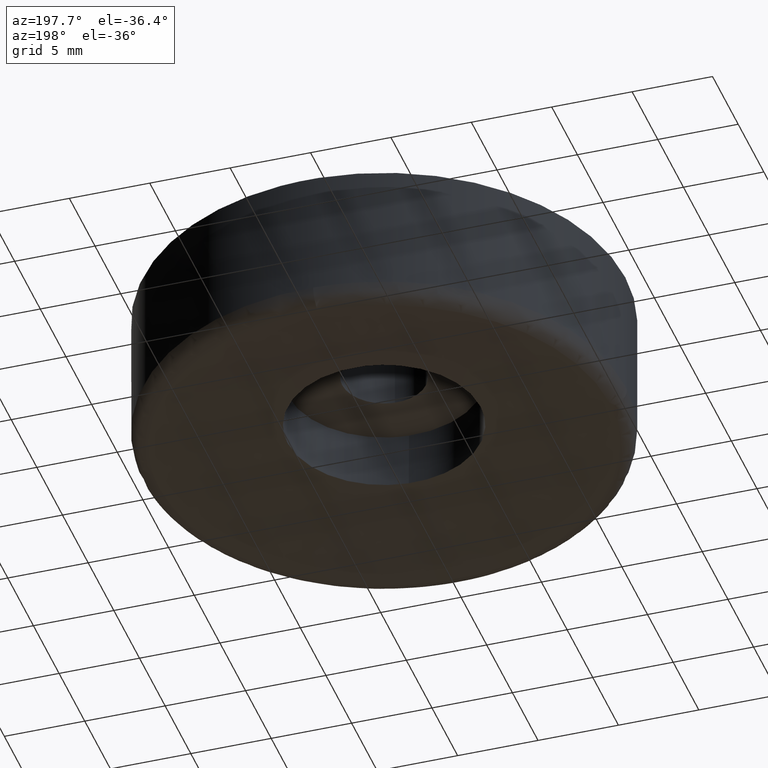
[diagram: clean part render]
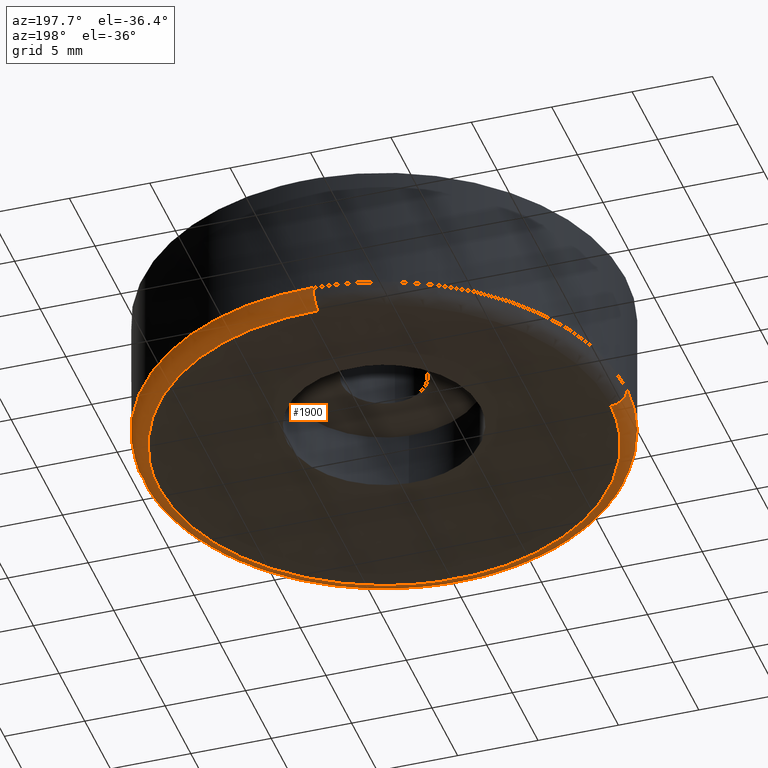
[diagram: same view with one face highlighted and labeled with its STEP entity id]
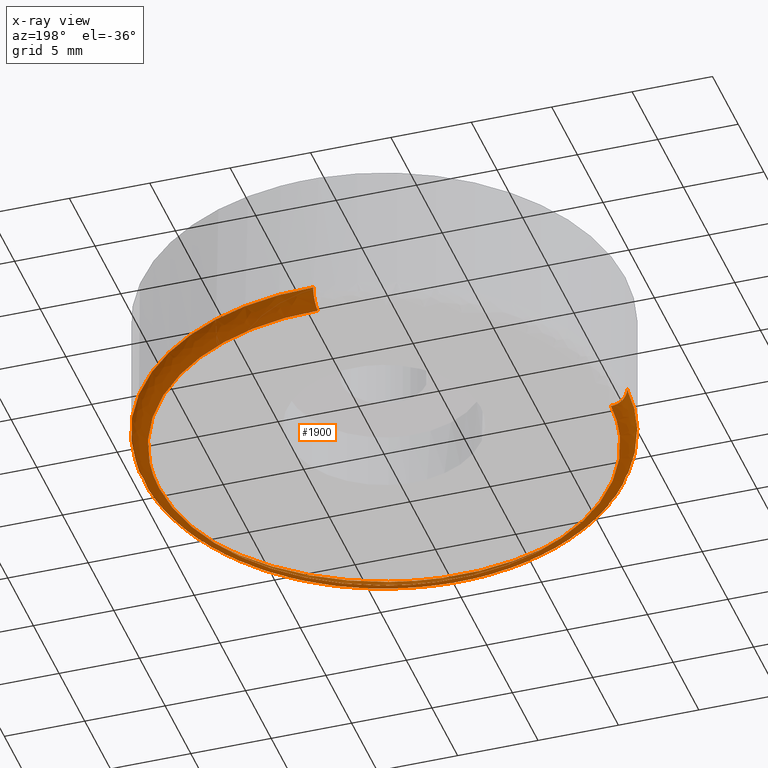
[diagram: x-ray of the same camera — body ghosted, the highlighted face saturated]
A machine part, auxiliary view. The second image highlights one B-rep face of the part: STEP entity #1900.
The next image is the same camera in x-ray: the body ghosted, the highlighted face saturated — about 0% of this face is hidden behind the body in this view.
In plain terms, the highlighted face is a freeform B-spline surface patch.
Its self-contained STEP definition (entity closure, byte-faithful):
#519=CARTESIAN_POINT('',(-7.216511091337302,-11.996745991237420,0.000000356857896));
#520=VERTEX_POINT('',#519);
#521=CARTESIAN_POINT('',(-13.995578650399141,-0.351821336239177,1.874299E-016));
#522=VERTEX_POINT('',#521);
#523=CARTESIAN_POINT('',(-7.216511091337302,-11.996745991237422,0.000000356857896));
#524=CARTESIAN_POINT('',(-13.802436730045450,-8.035055702131242,0.000000178428948));
#525=CARTESIAN_POINT('',(-13.995578650399141,-0.351821336239177,1.874299E-016));
#533=(BOUNDED_CURVE()B_SPLINE_CURVE(2,(#523,#524,#525),.UNSPECIFIED.,.F.,.U.)B_SPLINE_CURVE_WITH_KNOTS((3,3),(0.838022801736637,0.995579891769269),.UNSPECIFIED.)CURVE()GEOMETRIC_REPRESENTATION_ITEM()RATIONAL_B_SPLINE_CURVE((0.866368646969517,0.811763793235545,0.989826157680359))REPRESENTATION_ITEM(''));
#534=EDGE_CURVE('',#520,#522,#533,.T.);
#551=CARTESIAN_POINT('',(-0.351821336244475,13.995578650466770,1.874299E-016));
#552=VERTEX_POINT('',#551);
#566=CARTESIAN_POINT('',(14.0,0.0,0.0));
#567=VERTEX_POINT('',#566);
#568=CARTESIAN_POINT('',(-0.351821336244475,13.995578650466772,1.874299E-016));
#569=CARTESIAN_POINT('',(-0.175938449752476,13.999999999999998,0.0));
#570=CARTESIAN_POINT('',(0.0,14.0,0.0));
#571=CARTESIAN_POINT('',(13.999999999999998,13.999999999999998,0.0));
#572=CARTESIAN_POINT('',(14.0,0.0,0.0));
#580=(BOUNDED_CURVE()B_SPLINE_CURVE(2,(#568,#569,#570,#571,#572),.UNSPECIFIED.,.F.,.U.)B_SPLINE_CURVE_WITH_KNOTS((3,2,3),(0.245579891769179,0.250000000000000,0.500000000000000),.UNSPECIFIED.)CURVE()GEOMETRIC_REPRESENTATION_ITEM()RATIONAL_B_SPLINE_CURVE((0.989826157680155,0.994821521091084,1.0,0.707106781186547,1.0))REPRESENTATION_ITEM(''));
#581=EDGE_CURVE('',#552,#567,#580,.T.);
#583=CARTESIAN_POINT('',(1.098427340218535,-13.956842672265889,-8.158092E-013));
#584=VERTEX_POINT('',#583);
#585=CARTESIAN_POINT('',(14.0,0.0,0.0));
#586=CARTESIAN_POINT('',(14.000000000000004,-12.941466883162205,0.0));
#587=CARTESIAN_POINT('',(1.098427340218535,-13.956842672265889,-8.158092E-013));
#595=(BOUNDED_CURVE()B_SPLINE_CURVE(2,(#585,#586,#587),.UNSPECIFIED.,.F.,.U.)B_SPLINE_CURVE_WITH_KNOTS((3,3),(0.500000000000000,0.736331300632071),.UNSPECIFIED.)CURVE()GEOMETRIC_REPRESENTATION_ITEM()RATIONAL_B_SPLINE_CURVE((1.0,0.723120658606012,0.969723356170363))REPRESENTATION_ITEM(''));
#596=EDGE_CURVE('',#567,#584,#595,.T.);
#689=CARTESIAN_POINT('',(1.098427340218535,-13.956842672265898,-8.158092E-013));
#690=CARTESIAN_POINT('',(0.550061558266888,-13.999999900000478,0.000000021881228));
#691=CARTESIAN_POINT('',(0.000000121616795,-13.999999797788870,0.000000044245854));
#692=CARTESIAN_POINT('',(-3.886299779734846,-13.999999075642338,0.000000202256651));
#693=CARTESIAN_POINT('',(-7.216511091337302,-11.996745991237422,0.000000356857896));
#701=(BOUNDED_CURVE()B_SPLINE_CURVE(2,(#689,#690,#691,#692,#693),.UNSPECIFIED.,.F.,.U.)B_SPLINE_CURVE_WITH_KNOTS((3,2,3),(0.736331300632070,0.750000000000000,0.838022801736637),.UNSPECIFIED.)CURVE()GEOMETRIC_REPRESENTATION_ITEM()RATIONAL_B_SPLINE_CURVE((0.969723356170361,0.983986122580534,1.0,0.896874873081512,0.866368646969517))REPRESENTATION_ITEM(''));
#702=EDGE_CURVE('',#584,#520,#701,.T.);
#1447=CARTESIAN_POINT('',(14.639534999406409,-3.268641155137535,0.999999999999965));
#1448=VERTEX_POINT('',#1447);
#1449=CARTESIAN_POINT('',(1.176877728282317,-14.953760691297580,1.000000000000031));
#1450=VERTEX_POINT('',#1449);
#1451=CARTESIAN_POINT('',(14.639534999406411,-3.268641155137535,0.999999999999965));
#1452=CARTESIAN_POINT('',(12.224672459072801,-14.084286862360996,1.0));
#1453=CARTESIAN_POINT('',(1.176877728282316,-14.953760691297584,1.000000000000031));
#1461=(BOUNDED_CURVE()B_SPLINE_CURVE(2,(#1451,#1452,#1453),.UNSPECIFIED.,.F.,.U.)B_SPLINE_CURVE_WITH_KNOTS((3,3),(0.537286560370751,0.736331400453952),.UNSPECIFIED.)CURVE()GEOMETRIC_REPRESENTATION_ITEM()RATIONAL_B_SPLINE_CURVE((0.925662740296602,0.762027680026814,0.969723564491107))REPRESENTATION_ITEM(''));
#1462=EDGE_CURVE('',#1448,#1450,#1461,.T.);
#1520=CARTESIAN_POINT('',(15.0,0.0,1.0));
#1521=VERTEX_POINT('',#1520);
#1522=CARTESIAN_POINT('',(15.0,0.0,1.0));
#1523=CARTESIAN_POINT('',(14.999999999999996,-1.654196576567423,1.0));
#1524=CARTESIAN_POINT('',(14.639534999406409,-3.268641155137535,0.999999999999965));
#1532=(BOUNDED_CURVE()B_SPLINE_CURVE(2,(#1522,#1523,#1524),.UNSPECIFIED.,.F.,.U.)B_SPLINE_CURVE_WITH_KNOTS((3,3),(0.500000000000000,0.537286560370751),.UNSPECIFIED.)CURVE()GEOMETRIC_REPRESENTATION_ITEM()RATIONAL_B_SPLINE_CURVE((1.0,0.956316077258115,0.925662740296602))REPRESENTATION_ITEM(''));
#1533=EDGE_CURVE('',#1521,#1448,#1532,.T.);
#1535=CARTESIAN_POINT('',(-0.376951431650352,14.995262839249490,0.999999999845046));
#1536=VERTEX_POINT('',#1535);
#1537=CARTESIAN_POINT('',(-0.376951431650352,14.995262839249484,0.999999999845046));
#1538=CARTESIAN_POINT('',(-0.188505481850985,15.000000000000004,1.0));
#1539=CARTESIAN_POINT('',(0.0,15.0,1.0));
#1540=CARTESIAN_POINT('',(14.999999999999996,14.999999999999996,1.0));
#1541=CARTESIAN_POINT('',(15.0,0.0,1.0));
#1549=(BOUNDED_CURVE()B_SPLINE_CURVE(2,(#1537,#1538,#1539,#1540,#1541),.UNSPECIFIED.,.F.,.U.)B_SPLINE_CURVE_WITH_KNOTS((3,2,3),(0.245579891769801,0.250000000000000,0.500000000000000),.UNSPECIFIED.)CURVE()GEOMETRIC_REPRESENTATION_ITEM()RATIONAL_B_SPLINE_CURVE((0.989826157681561,0.994821521091812,1.0,0.707106781186547,1.0))REPRESENTATION_ITEM(''));
#1550=EDGE_CURVE('',#1536,#1521,#1549,.T.);
#1567=CARTESIAN_POINT('',(-14.995262839249479,-0.376951431650642,0.999999999844865));
#1568=VERTEX_POINT('',#1567);
#1582=CARTESIAN_POINT('',(1.176877728282316,-14.953760691297584,1.000000000000031));
#1583=CARTESIAN_POINT('',(0.589347231092921,-14.999999999999996,1.0));
#1584=CARTESIAN_POINT('',(0.0,-15.0,1.0));
#1585=CARTESIAN_POINT('',(-14.627668142708698,-14.999999999999995,1.0));
#1586=CARTESIAN_POINT('',(-14.995262839249484,-0.376951431650642,0.999999999844865));
#1594=(BOUNDED_CURVE()B_SPLINE_CURVE(2,(#1582,#1583,#1584,#1585,#1586),.UNSPECIFIED.,.F.,.U.)B_SPLINE_CURVE_WITH_KNOTS((3,2,3),(0.736331400453952,0.750000000000000,0.995579891769795),.UNSPECIFIED.)CURVE()GEOMETRIC_REPRESENTATION_ITEM()RATIONAL_B_SPLINE_CURVE((0.969723564491107,0.983986239529144,1.0,0.712285260094742,0.989826157681548))REPRESENTATION_ITEM(''));
#1595=EDGE_CURVE('',#1450,#1568,#1594,.T.);
#1835=CARTESIAN_POINT('',(-0.376890272703577,14.992829914473205,1.069724198540259));
#1836=CARTESIAN_POINT('',(14.615939641769629,15.369720187176783,1.069724198540260));
#1837=CARTESIAN_POINT('',(14.992829914473205,0.376890272703577,1.069724198540259));
#1838=CARTESIAN_POINT('',(15.369720187176785,-14.615939641769625,1.069724198540260));
#1839=CARTESIAN_POINT('',(0.376890272703582,-14.992829914473205,1.069724198540259));
#1840=CARTESIAN_POINT('',(-14.615939641769621,-15.369720187176785,1.069724198540260));
#1841=CARTESIAN_POINT('',(-14.992829914473205,-0.376890272703583,1.069724198540259));
#1842=CARTESIAN_POINT('',(-0.378905027116878,15.072977565993575,-0.077336022312903));
#1843=CARTESIAN_POINT('',(14.694072538876695,15.451882593110451,-0.077336022312903));
#1844=CARTESIAN_POINT('',(15.072977565993575,0.378905027116879,-0.077336022312903));
#1845=CARTESIAN_POINT('',(15.451882593110454,-14.694072538876688,-0.077336022312903));
#1846=CARTESIAN_POINT('',(0.378905027116883,-15.072977565993575,-0.077336022312903));
#1847=CARTESIAN_POINT('',(-14.694072538876688,-15.451882593110454,-0.077336022312903));
#1848=CARTESIAN_POINT('',(-15.072977565993575,-0.378905027116884,-0.077336022312903));
#1849=CARTESIAN_POINT('',(-0.350078542308912,13.926249685070262,0.002407669788962));
#1850=CARTESIAN_POINT('',(13.576171142761353,14.276328227379180,0.002407669788962));
#1851=CARTESIAN_POINT('',(13.926249685070262,0.350078542308913,0.002407669788962));
#1852=CARTESIAN_POINT('',(14.276328227379180,-13.576171142761348,0.002407669788962));
#1853=CARTESIAN_POINT('',(0.350078542308917,-13.926249685070262,0.002407669788962));
#1854=CARTESIAN_POINT('',(-13.576171142761348,-14.276328227379180,0.002407669788962));
#1855=CARTESIAN_POINT('',(-13.926249685070262,-0.350078542308918,0.002407669788962));
#1863=(BOUNDED_SURFACE()B_SPLINE_SURFACE(2,2,((#1835,#1842,#1849),(#1836,#1843,#1850),(#1837,#1844,#1851),(#1838,#1845,#1852),(#1839,#1846,#1853),(#1840,#1847,#1854),(#1841,#1848,#1855)),.UNSPECIFIED.,.F.,.F.,.U.)B_SPLINE_SURFACE_WITH_KNOTS((3,2,2,3),(3,3),(0.0,24.848781467195689,49.697562934391371,74.546344401587049),(0.0,1.822370696087853),.UNSPECIFIED.)GEOMETRIC_REPRESENTATION_ITEM()RATIONAL_B_SPLINE_SURFACE(((0.910892947162218,0.599412870471164,0.915966744701400),(0.644098579873404,0.423848905440654,0.647686296519727),(0.910892947162218,0.599412870471164,0.915966744701400),(0.644098579873404,0.423848905440654,0.647686296519727),(0.910892947162218,0.599412870471164,0.915966744701400),(0.644098579873404,0.423848905440654,0.647686296519727),(0.910892947162218,0.599412870471164,0.915966744701400)))REPRESENTATION_ITEM('')SURFACE());
#1864=ORIENTED_EDGE('',*,*,#581,.F.);
#1865=CARTESIAN_POINT('',(-0.376951431650352,14.995262839249486,0.999999999845046));
#1866=CARTESIAN_POINT('',(-0.376951431642274,14.995262838939684,1.002733E-009));
#1867=CARTESIAN_POINT('',(-0.351821336244475,13.995578650466774,1.874299E-016));
#1875=(BOUNDED_CURVE()B_SPLINE_CURVE(2,(#1865,#1866,#1867),.UNSPECIFIED.,.F.,.U.)B_SPLINE_CURVE_WITH_KNOTS((3,3),(-1.723441281665690,-0.263586879965622),.UNSPECIFIED.)CURVE()GEOMETRIC_REPRESENTATION_ITEM()RATIONAL_B_SPLINE_CURVE((0.883897567026207,0.626638727477658,0.888510408690228))REPRESENTATION_ITEM(''));
#1876=EDGE_CURVE('',#1536,#552,#1875,.T.);
#1877=ORIENTED_EDGE('',*,*,#1876,.F.);
#1878=ORIENTED_EDGE('',*,*,#1550,.T.);
#1879=ORIENTED_EDGE('',*,*,#1533,.T.);
#1880=ORIENTED_EDGE('',*,*,#1462,.T.);
#1881=ORIENTED_EDGE('',*,*,#1595,.T.);
#1882=CARTESIAN_POINT('',(-14.995262839249484,-0.376951431650642,0.999999999844865));
#1883=CARTESIAN_POINT('',(-14.995262838939318,-0.376951431642264,8.672462E-010));
#1884=CARTESIAN_POINT('',(-13.995578650399146,-0.351821336239177,1.874299E-016));
#1892=(BOUNDED_CURVE()B_SPLINE_CURVE(2,(#1882,#1883,#1884),.UNSPECIFIED.,.F.,.U.)B_SPLINE_CURVE_WITH_KNOTS((3,3),(-1.723441281665317,-0.263586879825398),.UNSPECIFIED.)CURVE()GEOMETRIC_REPRESENTATION_ITEM()RATIONAL_B_SPLINE_CURVE((0.883897567026075,0.626638727453015,0.888510408740535))REPRESENTATION_ITEM(''));
#1893=EDGE_CURVE('',#1568,#522,#1892,.T.);
#1894=ORIENTED_EDGE('',*,*,#1893,.T.);
#1895=ORIENTED_EDGE('',*,*,#534,.F.);
#1896=ORIENTED_EDGE('',*,*,#702,.F.);
#1897=ORIENTED_EDGE('',*,*,#596,.F.);
#1898=EDGE_LOOP('',(#1864,#1877,#1878,#1879,#1880,#1881,#1894,#1895,#1896,#1897));
#1899=FACE_OUTER_BOUND('',#1898,.T.);
#1900=ADVANCED_FACE('',(#1899),#1863,.T.);